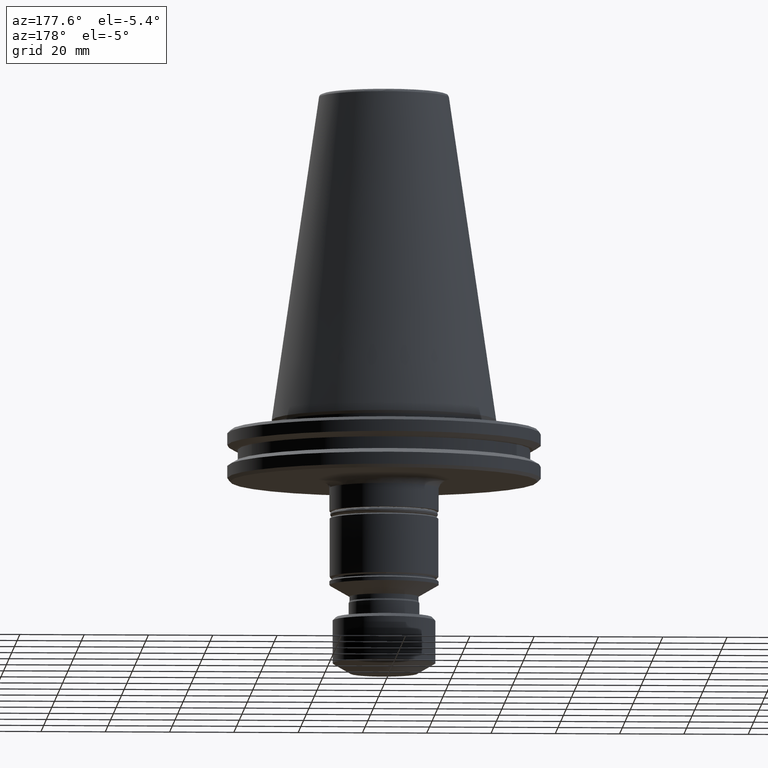
[diagram: clean part render]
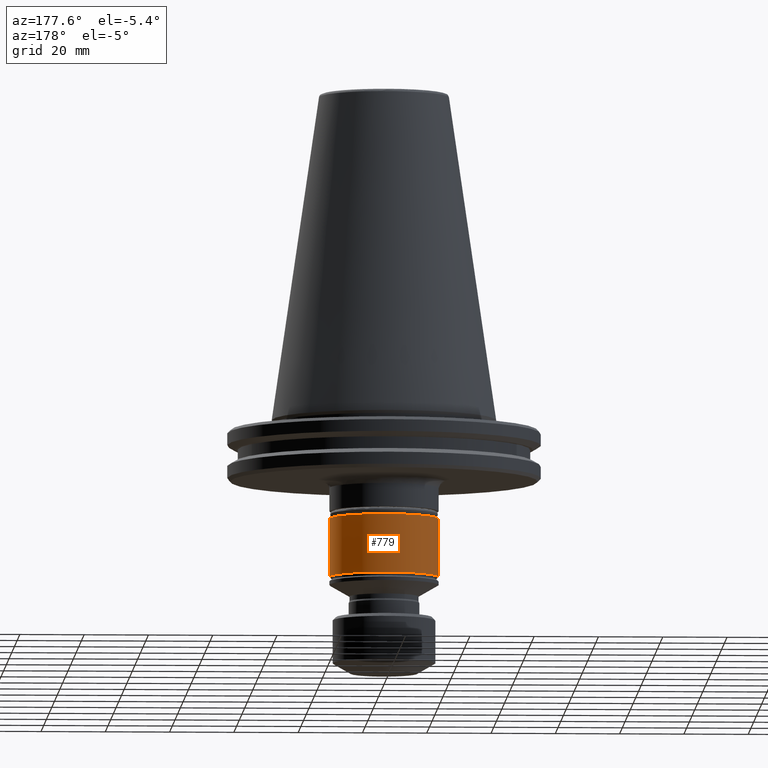
[diagram: same view with one face highlighted and labeled with its STEP entity id]
A machine part, auxiliary view. The second image highlights one B-rep face of the part: STEP entity #779.
In plain terms, the highlighted cylindrical surface (partial cylindrical patch) has radius 16.9 mm, axis along (0, 0, 1).
Its self-contained STEP definition (entity closure, byte-faithful):
#65 = EDGE_CURVE ( 'NONE', #235, #1871, #1014, .T. ) ;
#97 = VERTEX_POINT ( 'NONE', #1145 ) ;
#135 = CARTESIAN_POINT ( 'NONE',  ( -16.89999999999999900, 2.069653090559026900E-015, 0.0000000000000000000 ) ) ;
#225 = DIRECTION ( 'NONE',  ( 1.000000000000000000, 0.0000000000000000000, 0.0000000000000000000 ) ) ;
#229 = DIRECTION ( 'NONE',  ( -1.000000000000000000, 0.0000000000000000000, 0.0000000000000000000 ) ) ;
#235 = VERTEX_POINT ( 'NONE', #1505 ) ;
#400 = CARTESIAN_POINT ( 'NONE',  ( -16.89999999999999900, 2.069653090559026900E-015, -48.90000000000001300 ) ) ;
#409 = LINE ( 'NONE', #135, #1596 ) ;
#509 = ORIENTED_EDGE ( 'NONE', *, *, #1716, .F. ) ;
#695 = AXIS2_PLACEMENT_3D ( 'NONE', #2090, #1611, #229 ) ;
#713 = EDGE_CURVE ( 'NONE', #822, #97, #2339, .T. ) ;
#779 = ADVANCED_FACE ( 'NONE', ( #1966 ), #2462, .T. ) ;
#789 = EDGE_CURVE ( 'NONE', #2457, #97, #409, .T. ) ;
#800 = VECTOR ( 'NONE', #1474, 1000.000000000000000 ) ;
#822 = VERTEX_POINT ( 'NONE', #2285 ) ;
#868 = LINE ( 'NONE', #1340, #800 ) ;
#954 = EDGE_LOOP ( 'NONE', ( #2220, #2351, #2353, #509, #2275 ) ) ;
#979 = DIRECTION ( 'NONE',  ( 1.000000000000000000, 0.0000000000000000000, 0.0000000000000000000 ) ) ;
#1004 = DIRECTION ( 'NONE',  ( 0.0000000000000000000, 0.0000000000000000000, 1.000000000000000000 ) ) ;
#1014 = CIRCLE ( 'NONE', #1154, 16.89999999999999900 ) ;
#1035 = CARTESIAN_POINT ( 'NONE',  ( 0.0000000000000000000, 0.0000000000000000000, -48.90000000000001300 ) ) ;
#1145 = CARTESIAN_POINT ( 'NONE',  ( -16.89999999999999900, 2.069653090559026900E-015, -30.70000000000002100 ) ) ;
#1154 = AXIS2_PLACEMENT_3D ( 'NONE', #1035, #1004, #979 ) ;
#1222 = DIRECTION ( 'NONE',  ( 0.0000000000000000000, 0.0000000000000000000, 1.000000000000000000 ) ) ;
#1267 = CARTESIAN_POINT ( 'NONE',  ( 2.069653090559026900E-015, 16.89999999999999900, -48.90000000000001300 ) ) ;
#1340 = CARTESIAN_POINT ( 'NONE',  ( 16.89999999999999900, 0.0000000000000000000, 0.0000000000000000000 ) ) ;
#1382 = AXIS2_PLACEMENT_3D ( 'NONE', #1880, #1222, #225 ) ;
#1474 = DIRECTION ( 'NONE',  ( 0.0000000000000000000, 0.0000000000000000000, 1.000000000000000000 ) ) ;
#1505 = CARTESIAN_POINT ( 'NONE',  ( 16.89999999999999900, 0.0000000000000000000, -48.90000000000001300 ) ) ;
#1582 = CIRCLE ( 'NONE', #1929, 16.89999999999999900 ) ;
#1596 = VECTOR ( 'NONE', #1887, 1000.000000000000000 ) ;
#1611 = DIRECTION ( 'NONE',  ( -0.0000000000000000000, -0.0000000000000000000, 1.000000000000000000 ) ) ;
#1716 = EDGE_CURVE ( 'NONE', #235, #822, #868, .T. ) ;
#1871 = VERTEX_POINT ( 'NONE', #1267 ) ;
#1880 = CARTESIAN_POINT ( 'NONE',  ( 0.0000000000000000000, 0.0000000000000000000, 0.0000000000000000000 ) ) ;
#1887 = DIRECTION ( 'NONE',  ( 0.0000000000000000000, 0.0000000000000000000, 1.000000000000000000 ) ) ;
#1929 = AXIS2_PLACEMENT_3D ( 'NONE', #2471, #2464, #2451 ) ;
#1966 = FACE_OUTER_BOUND ( 'NONE', #954, .T. ) ;
#2090 = CARTESIAN_POINT ( 'NONE',  ( 0.0000000000000000000, 0.0000000000000000000, -30.70000000000002100 ) ) ;
#2220 = ORIENTED_EDGE ( 'NONE', *, *, #2401, .T. ) ;
#2275 = ORIENTED_EDGE ( 'NONE', *, *, #65, .T. ) ;
#2285 = CARTESIAN_POINT ( 'NONE',  ( 16.89999999999999900, 0.0000000000000000000, -30.70000000000002100 ) ) ;
#2339 = CIRCLE ( 'NONE', #695, 16.89999999999999900 ) ;
#2351 = ORIENTED_EDGE ( 'NONE', *, *, #789, .T. ) ;
#2353 = ORIENTED_EDGE ( 'NONE', *, *, #713, .F. ) ;
#2401 = EDGE_CURVE ( 'NONE', #1871, #2457, #1582, .T. ) ;
#2451 = DIRECTION ( 'NONE',  ( 1.000000000000000000, 0.0000000000000000000, 0.0000000000000000000 ) ) ;
#2457 = VERTEX_POINT ( 'NONE', #400 ) ;
#2462 = CYLINDRICAL_SURFACE ( 'NONE', #1382, 16.89999999999999900 ) ;
#2464 = DIRECTION ( 'NONE',  ( 0.0000000000000000000, 0.0000000000000000000, 1.000000000000000000 ) ) ;
#2471 = CARTESIAN_POINT ( 'NONE',  ( 0.0000000000000000000, 0.0000000000000000000, -48.90000000000001300 ) ) ;